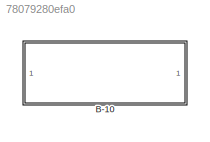
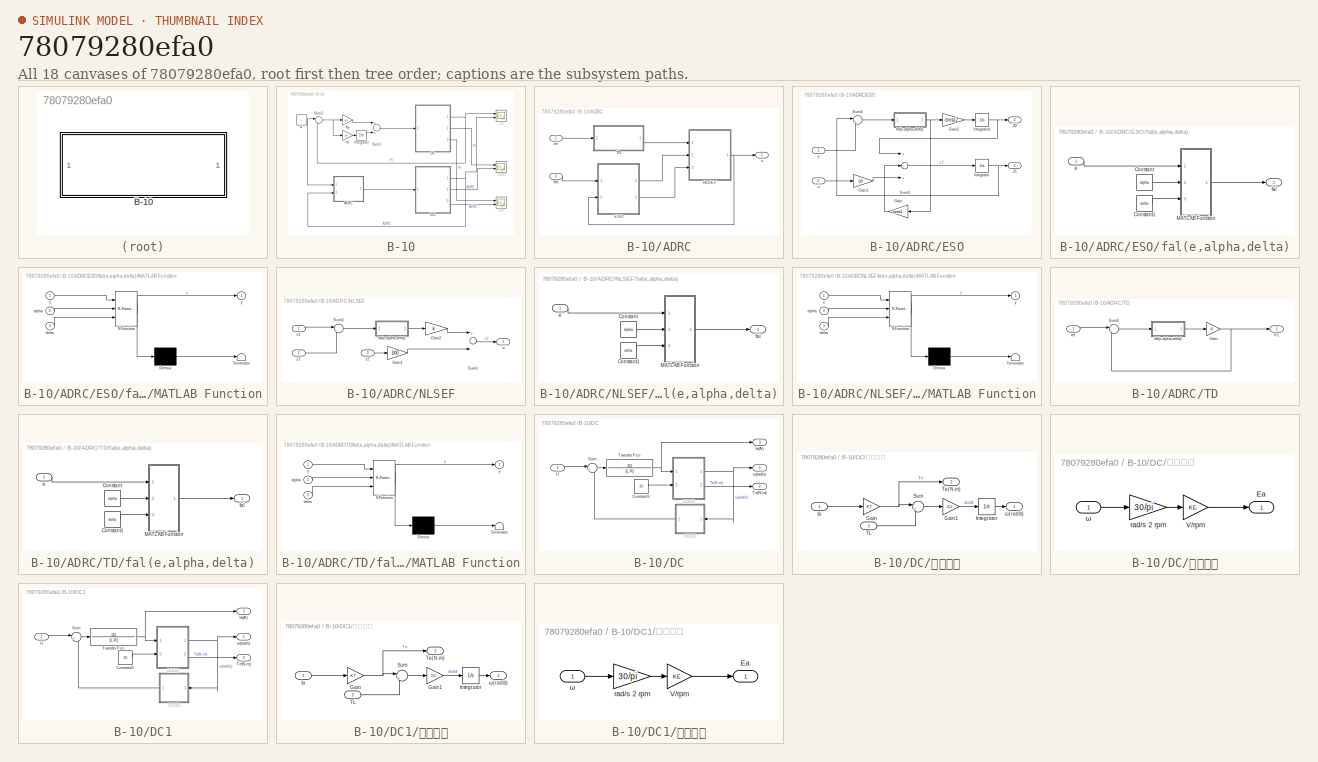
[diagram: thumbnail index - all 18 canvases of the model, root first then tree order]
MODEL slx_78079280efa0
KIND model
CONFIG AbsTol = auto
CONFIG EnableMultiTasking = off
CONFIG FixedStep = auto
CONFIG MaxStep = 1e-4
CONFIG MinStep = auto
CONFIG RelTol = 1e-6
CONFIG SampleTimeConstraint = Unconstrained
CONFIG Solver = VariableStepAuto
CONFIG SolverName = VariableStepAuto
CONFIG StartTime = 0.0
CONFIG StopFcn = %CELEC_plot;
CONFIG StopTime = 1
BLOCK [SubSystem] B-10
  Ports = []
  RequestExecContextInheritance = off
BLOCK [SubSystem] B-10/ADRC
  Ports = [2, 1]
  RequestExecContextInheritance = off
BLOCK [SubSystem] B-10/ADRC/ESO
  Ports = [2, 2]
  RequestExecContextInheritance = off
BLOCK [Gain] B-10/ADRC/ESO/Gain
  Gain = beta1
  OutDataTypeStr = Inherit: Inherit via internal rule
  ParamDataTypeStr = Inherit: Inherit via internal rule
  SaturateOnIntegerOverflow = off
BLOCK [Gain] B-10/ADRC/ESO/Gain1
  Gain = b0
  OutDataTypeStr = Inherit: Inherit via internal rule
  ParamDataTypeStr = Inherit: Inherit via internal rule
  SaturateOnIntegerOverflow = off
BLOCK [Gain] B-10/ADRC/ESO/Gain2
  Gain = -beta2
  OutDataTypeStr = Inherit: Inherit via internal rule
  ParamDataTypeStr = Inherit: Inherit via internal rule
  SaturateOnIntegerOverflow = off
BLOCK [Integrator] B-10/ADRC/ESO/Integrator
  Ports = [1, 1]
BLOCK [Integrator] B-10/ADRC/ESO/Integrator1
  Ports = [1, 1]
BLOCK [Sum] B-10/ADRC/ESO/Sum1
  InputSameDT = off
  Inputs = +-+
  OutDataTypeStr = Inherit: Inherit via internal rule
  Ports = [3, 1]
  SaturateOnIntegerOverflow = off
BLOCK [Sum] B-10/ADRC/ESO/Sum3
  IconShape = round
  InputSameDT = off
  Inputs = |+-
  OutDataTypeStr = Inherit: Inherit via internal rule
  Ports = [2, 1]
  SaturateOnIntegerOverflow = off
BLOCK [Outport] B-10/ADRC/ESO/Z1   
  IconDisplay = Port number
BLOCK [Outport] B-10/ADRC/ESO/Z2
  IconDisplay = Port number
  Port = 2
BLOCK [SubSystem] B-10/ADRC/ESO/fal(e,alpha,delta)
  Ports = [1, 1]
  RequestExecContextInheritance = off
BLOCK [Constant] B-10/ADRC/ESO/fal(e,alpha,delta)/Constant
  Value = alpha
BLOCK [Constant] B-10/ADRC/ESO/fal(e,alpha,delta)/Constant1
  Value = delta
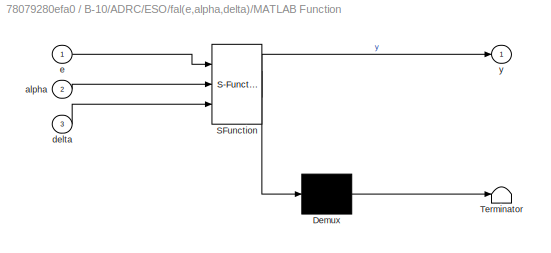
BLOCK [SubSystem] B-10/ADRC/ESO/fal(e,alpha,delta)/MATLAB Function
  ErrorFcn = Stateflow.Translate.translate
  PermitHierarchicalResolution = ExplicitOnly
  Ports = [3, 1]
  RequestExecContextInheritance = off
  SFBlockType = MATLAB Function
  TreatAsAtomicUnit = on
BLOCK [Demux] B-10/ADRC/ESO/fal(e,alpha,delta)/MATLAB Function/ Demux 
  Outputs = 1
  Ports = [1, 1]
BLOCK [S-Function] B-10/ADRC/ESO/fal(e,alpha,delta)/MATLAB Function/ SFunction 
  EnableBusSupport = on
  FunctionName = sf_sfun
  PortCounts = [3 2]
  Ports = [3, 2]
  SFcnIsStateOwnerBlock = off
  SFunctionDeploymentMode = off
  Tag = Stateflow S-Function B_14 1
BLOCK [Terminator] B-10/ADRC/ESO/fal(e,alpha,delta)/MATLAB Function/ Terminator 
BLOCK [Inport] B-10/ADRC/ESO/fal(e,alpha,delta)/MATLAB Function/alpha
  IconDisplay = Port number
  Port = 2
BLOCK [Inport] B-10/ADRC/ESO/fal(e,alpha,delta)/MATLAB Function/delta
  IconDisplay = Port number
  Port = 3
BLOCK [Inport] B-10/ADRC/ESO/fal(e,alpha,delta)/MATLAB Function/e
  IconDisplay = Port number
BLOCK [Outport] B-10/ADRC/ESO/fal(e,alpha,delta)/MATLAB Function/y
  IconDisplay = Port number
BLOCK [Inport] B-10/ADRC/ESO/fal(e,alpha,delta)/e
  IconDisplay = Port number
BLOCK [Outport] B-10/ADRC/ESO/fal(e,alpha,delta)/fal
  IconDisplay = Port number
BLOCK [Inport] B-10/ADRC/ESO/u
  IconDisplay = Port number
  Port = 2
BLOCK [Inport] B-10/ADRC/ESO/y
  IconDisplay = Port number
BLOCK [SubSystem] B-10/ADRC/NLSEF
  Ports = [3, 1]
  RequestExecContextInheritance = off
BLOCK [Gain] B-10/ADRC/NLSEF/Gain1
  Gain = 1/b0
  OutDataTypeStr = Inherit: Inherit via internal rule
  ParamDataTypeStr = Inherit: Inherit via internal rule
  SaturateOnIntegerOverflow = off
BLOCK [Gain] B-10/ADRC/NLSEF/Gain2
  Gain = k
  OutDataTypeStr = Inherit: Inherit via internal rule
  ParamDataTypeStr = Inherit: Inherit via internal rule
  SaturateOnIntegerOverflow = off
BLOCK [Sum] B-10/ADRC/NLSEF/Sum1
  InputSameDT = off
  Inputs = +-
  OutDataTypeStr = Inherit: Inherit via internal rule
  Ports = [2, 1]
  SaturateOnIntegerOverflow = off
BLOCK [Sum] B-10/ADRC/NLSEF/Sum3
  IconShape = round
  InputSameDT = off
  Inputs = |+-
  OutDataTypeStr = Inherit: Inherit via internal rule
  Ports = [2, 1]
  SaturateOnIntegerOverflow = off
BLOCK [SubSystem] B-10/ADRC/NLSEF/fal(e,alpha,delta)
  Ports = [1, 1]
  RequestExecContextInheritance = off
BLOCK [Constant] B-10/ADRC/NLSEF/fal(e,alpha,delta)/Constant
  Value = alpha
BLOCK [Constant] B-10/ADRC/NLSEF/fal(e,alpha,delta)/Constant1
  Value = delta
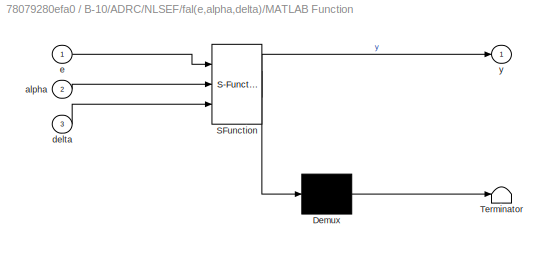
BLOCK [SubSystem] B-10/ADRC/NLSEF/fal(e,alpha,delta)/MATLAB Function
  ErrorFcn = Stateflow.Translate.translate
  PermitHierarchicalResolution = ExplicitOnly
  Ports = [3, 1]
  RequestExecContextInheritance = off
  SFBlockType = MATLAB Function
  TreatAsAtomicUnit = on
BLOCK [Demux] B-10/ADRC/NLSEF/fal(e,alpha,delta)/MATLAB Function/ Demux 
  Outputs = 1
  Ports = [1, 1]
BLOCK [S-Function] B-10/ADRC/NLSEF/fal(e,alpha,delta)/MATLAB Function/ SFunction 
  EnableBusSupport = on
  FunctionName = sf_sfun
  PortCounts = [3 2]
  Ports = [3, 2]
  SFcnIsStateOwnerBlock = off
  SFunctionDeploymentMode = off
  Tag = Stateflow S-Function B_14 3
BLOCK [Terminator] B-10/ADRC/NLSEF/fal(e,alpha,delta)/MATLAB Function/ Terminator 
BLOCK [Inport] B-10/ADRC/NLSEF/fal(e,alpha,delta)/MATLAB Function/alpha
  IconDisplay = Port number
  Port = 2
BLOCK [Inport] B-10/ADRC/NLSEF/fal(e,alpha,delta)/MATLAB Function/delta
  IconDisplay = Port number
  Port = 3
BLOCK [Inport] B-10/ADRC/NLSEF/fal(e,alpha,delta)/MATLAB Function/e
  IconDisplay = Port number
BLOCK [Outport] B-10/ADRC/NLSEF/fal(e,alpha,delta)/MATLAB Function/y
  IconDisplay = Port number
BLOCK [Inport] B-10/ADRC/NLSEF/fal(e,alpha,delta)/e
  IconDisplay = Port number
BLOCK [Outport] B-10/ADRC/NLSEF/fal(e,alpha,delta)/fal
  IconDisplay = Port number
BLOCK [Outport] B-10/ADRC/NLSEF/u
  IconDisplay = Port number
BLOCK [Inport] B-10/ADRC/NLSEF/v1
  IconDisplay = Port number
BLOCK [Inport] B-10/ADRC/NLSEF/z1
  IconDisplay = Port number
  Port = 2
BLOCK [Inport] B-10/ADRC/NLSEF/z2
  IconDisplay = Port number
  Port = 3
BLOCK [SubSystem] B-10/ADRC/TD
  Ports = [1, 1]
  RequestExecContextInheritance = off
BLOCK [Gain] B-10/ADRC/TD/Gain
  Gain = r0
  OutDataTypeStr = Inherit: Inherit via internal rule
  ParamDataTypeStr = Inherit: Inherit via internal rule
  SaturateOnIntegerOverflow = off
BLOCK [Sum] B-10/ADRC/TD/Sum3
  IconShape = round
  InputSameDT = off
  Inputs = |+-
  OutDataTypeStr = Inherit: Inherit via internal rule
  Ports = [2, 1]
  SaturateOnIntegerOverflow = off
BLOCK [Outport] B-10/ADRC/TD/V1
  IconDisplay = Port number
BLOCK [SubSystem] B-10/ADRC/TD/fal(e,alpha,delta)
  Ports = [1, 1]
  RequestExecContextInheritance = off
BLOCK [Constant] B-10/ADRC/TD/fal(e,alpha,delta)/Constant
  Value = alpha
BLOCK [Constant] B-10/ADRC/TD/fal(e,alpha,delta)/Constant1
  Value = delta
BLOCK [SubSystem] B-10/ADRC/TD/fal(e,alpha,delta)/MATLAB Function
  ErrorFcn = Stateflow.Translate.translate
  PermitHierarchicalResolution = ExplicitOnly
  Ports = [3, 1]
  RequestExecContextInheritance = off
  SFBlockType = MATLAB Function
  TreatAsAtomicUnit = on
BLOCK [Demux] B-10/ADRC/TD/fal(e,alpha,delta)/MATLAB Function/ Demux 
  Outputs = 1
  Ports = [1, 1]
BLOCK [S-Function] B-10/ADRC/TD/fal(e,alpha,delta)/MATLAB Function/ SFunction 
  EnableBusSupport = on
  FunctionName = sf_sfun
  PortCounts = [3 2]
  Ports = [3, 2]
  SFcnIsStateOwnerBlock = off
  SFunctionDeploymentMode = off
  Tag = Stateflow S-Function B_14 2
BLOCK [Terminator] B-10/ADRC/TD/fal(e,alpha,delta)/MATLAB Function/ Terminator 
BLOCK [Inport] B-10/ADRC/TD/fal(e,alpha,delta)/MATLAB Function/alpha
  IconDisplay = Port number
  Port = 2
BLOCK [Inport] B-10/ADRC/TD/fal(e,alpha,delta)/MATLAB Function/delta
  IconDisplay = Port number
  Port = 3
BLOCK [Inport] B-10/ADRC/TD/fal(e,alpha,delta)/MATLAB Function/e
  IconDisplay = Port number
BLOCK [Outport] B-10/ADRC/TD/fal(e,alpha,delta)/MATLAB Function/y
  IconDisplay = Port number
BLOCK [Inport] B-10/ADRC/TD/fal(e,alpha,delta)/e
  IconDisplay = Port number
BLOCK [Outport] B-10/ADRC/TD/fal(e,alpha,delta)/fal
  IconDisplay = Port number
BLOCK [Inport] B-10/ADRC/TD/ref
  IconDisplay = Port number
BLOCK [Inport] B-10/ADRC/fbk
  IconDisplay = Port number
  Port = 2
BLOCK [Inport] B-10/ADRC/ref
  IconDisplay = Port number
BLOCK [Outport] B-10/ADRC/u
  IconDisplay = Port number
BLOCK [SubSystem] B-10/DC
  Ports = [1, 3]
  RequestExecContextInheritance = off
BLOCK [Constant] B-10/DC/Constant3
  Value = 10
BLOCK [Outport] B-10/DC/Ia(A)
  IconDisplay = Port number
  Port = 3
BLOCK [Sum] B-10/DC/Sum
  IconShape = round
  InputSameDT = off
  Inputs = |+-
  OutDataTypeStr = Inherit: Inherit via internal rule
  Ports = [2, 1]
  SaturateOnIntegerOverflow = off
BLOCK [Outport] B-10/DC/Te(N.m)
  IconDisplay = Port number
  Port = 2
BLOCK [TransferFcn] B-10/DC/Transfer Fcn
  Denominator = [L R]
BLOCK [Inport] B-10/DC/U
  IconDisplay = Port number
BLOCK [Outport] B-10/DC/ω(rad//s)
  IconDisplay = Port number
BLOCK [SubSystem] B-10/DC/机械方程
  Ports = [2, 2]
  RequestExecContextInheritance = off
BLOCK [Gain] B-10/DC/机械方程/Gain
  Gain = KT
  OutDataTypeStr = Inherit: Inherit via internal rule
  ParamDataTypeStr = Inherit: Inherit via internal rule
  SaturateOnIntegerOverflow = off
BLOCK [Gain] B-10/DC/机械方程/Gain1
  Gain = 1/J
  OutDataTypeStr = Inherit: Inherit via internal rule
  ParamDataTypeStr = Inherit: Inherit via internal rule
  SaturateOnIntegerOverflow = off
BLOCK [Inport] B-10/DC/机械方程/Ia
  IconDisplay = Port number
BLOCK [Integrator] B-10/DC/机械方程/Integrator
  Ports = [1, 1]
BLOCK [Sum] B-10/DC/机械方程/Sum
  IconShape = round
  InputSameDT = off
  Inputs = |+-
  OutDataTypeStr = Inherit: Inherit via internal rule
  Ports = [2, 1]
  SaturateOnIntegerOverflow = off
BLOCK [Inport] B-10/DC/机械方程/TL
  IconDisplay = Port number
  Port = 2
BLOCK [Outport] B-10/DC/机械方程/Te(N.m)
  IconDisplay = Port number
  Port = 2
BLOCK [Outport] B-10/DC/机械方程/ω(rad//s)
  IconDisplay = Port number
BLOCK [SubSystem] B-10/DC/电气方程
  Ports = [1, 1]
  RequestExecContextInheritance = off
BLOCK [Outport] B-10/DC/电气方程/Ea
  IconDisplay = Port number
BLOCK [Gain] B-10/DC/电气方程/V//rpm
  Gain = KE
  OutDataTypeStr = Inherit: Inherit via internal rule
  ParamDataTypeStr = Inherit: Inherit via internal rule
  SaturateOnIntegerOverflow = off
BLOCK [Gain] B-10/DC/电气方程/rad//s 2 rpm
  Gain = 30/pi
  OutDataTypeStr = Inherit: Inherit via internal rule
  ParamDataTypeStr = Inherit: Inherit via internal rule
  SaturateOnIntegerOverflow = off
BLOCK [Inport] B-10/DC/电气方程/ω
  IconDisplay = Port number
BLOCK [SubSystem] B-10/DC1
  Ports = [1, 3]
  RequestExecContextInheritance = off
BLOCK [Constant] B-10/DC1/Constant3
  Value = 10
BLOCK [Outport] B-10/DC1/Ia(A)
  IconDisplay = Port number
  Port = 3
BLOCK [Sum] B-10/DC1/Sum
  IconShape = round
  InputSameDT = off
  Inputs = |+-
  OutDataTypeStr = Inherit: Inherit via internal rule
  Ports = [2, 1]
  SaturateOnIntegerOverflow = off
BLOCK [Outport] B-10/DC1/Te(N.m)
  IconDisplay = Port number
  Port = 2
BLOCK [TransferFcn] B-10/DC1/Transfer Fcn
  Denominator = [L R]
BLOCK [Inport] B-10/DC1/U
  IconDisplay = Port number
BLOCK [Outport] B-10/DC1/ω(rad//s)
  IconDisplay = Port number
BLOCK [SubSystem] B-10/DC1/机械方程
  Ports = [2, 2]
  RequestExecContextInheritance = off
BLOCK [Gain] B-10/DC1/机械方程/Gain
  Gain = KT
  OutDataTypeStr = Inherit: Inherit via internal rule
  ParamDataTypeStr = Inherit: Inherit via internal rule
  SaturateOnIntegerOverflow = off
BLOCK [Gain] B-10/DC1/机械方程/Gain1
  Gain = 1/J
  OutDataTypeStr = Inherit: Inherit via internal rule
  ParamDataTypeStr = Inherit: Inherit via internal rule
  SaturateOnIntegerOverflow = off
BLOCK [Inport] B-10/DC1/机械方程/Ia
  IconDisplay = Port number
BLOCK [Integrator] B-10/DC1/机械方程/Integrator
  Ports = [1, 1]
BLOCK [Sum] B-10/DC1/机械方程/Sum
  IconShape = round
  InputSameDT = off
  Inputs = |+-
  OutDataTypeStr = Inherit: Inherit via internal rule
  Ports = [2, 1]
  SaturateOnIntegerOverflow = off
BLOCK [Inport] B-10/DC1/机械方程/TL
  IconDisplay = Port number
  Port = 2
BLOCK [Outport] B-10/DC1/机械方程/Te(N.m)
  IconDisplay = Port number
  Port = 2
BLOCK [Outport] B-10/DC1/机械方程/ω(rad//s)
  IconDisplay = Port number
BLOCK [SubSystem] B-10/DC1/电气方程
  Ports = [1, 1]
  RequestExecContextInheritance = off
BLOCK [Outport] B-10/DC1/电气方程/Ea
  IconDisplay = Port number
BLOCK [Gain] B-10/DC1/电气方程/V//rpm
  Gain = KE
  OutDataTypeStr = Inherit: Inherit via internal rule
  ParamDataTypeStr = Inherit: Inherit via internal rule
  SaturateOnIntegerOverflow = off
BLOCK [Gain] B-10/DC1/电气方程/rad//s 2 rpm
  Gain = 30/pi
  OutDataTypeStr = Inherit: Inherit via internal rule
  ParamDataTypeStr = Inherit: Inherit via internal rule
  SaturateOnIntegerOverflow = off
BLOCK [Inport] B-10/DC1/电气方程/ω
  IconDisplay = Port number
BLOCK [Integrator] B-10/Integrator
  Ports = [1, 1]
BLOCK [Gain] B-10/Ki
  Gain = 300
  OutDataTypeStr = Inherit: Inherit via internal rule
  ParamDataTypeStr = Inherit: Inherit via internal rule
  SaturateOnIntegerOverflow = off
BLOCK [Gain] B-10/Kp
  Gain = 200
  OutDataTypeStr = Inherit: Inherit via internal rule
  ParamDataTypeStr = Inherit: Inherit via internal rule
  SaturateOnIntegerOverflow = off
BLOCK [Sum] B-10/Sum1
  InputSameDT = off
  OutDataTypeStr = Inherit: Inherit via internal rule
  Ports = [2, 1]
  SaturateOnIntegerOverflow = off
BLOCK [Sum] B-10/Sum2
  IconShape = round
  InputSameDT = off
  Inputs = |+-
  OutDataTypeStr = Inherit: Inherit via internal rule
  Ports = [2, 1]
  SaturateOnIntegerOverflow = off
BLOCK [Constant] B-10/w*
BLOCK [Scope] B-10/电流
  Floating = off
  NumInputPorts = 2
  Ports = [2]
  ScopeSpecificationString = Simulink.scopes.TimeScopeBlockCfg('CurrentConfiguration', extmgr.ConfigurationSet(extmgr.Configuration('Core','General UI',true),extmgr.Configuration('Core','Source UI',true),extmgr.Configuration('Sources','WiredSimulink',true,'DataLoggingVariableName','ScopeData1'),extmgr.Configuration('Visuals','Time Domain',true,'SerializedDisplays',{struct('MinYLimReal','-20.58398','MaxYLimReal','53.9504','YLa...<+1398ch>
BLOCK [Scope] B-10/电磁转矩
  Floating = off
  NumInputPorts = 2
  Ports = [2]
  ScopeSpecificationString = Simulink.scopes.TimeScopeBlockCfg('CurrentConfiguration', extmgr.ConfigurationSet(extmgr.Configuration('Core','General UI',true),extmgr.Configuration('Core','Source UI',true),extmgr.Configuration('Sources','WiredSimulink',true,'DataLoggingVariableName','ScopeData2'),extmgr.Configuration('Visuals','Time Domain',true,'SerializedDisplays',{struct('MinYLimReal','-354.04438','MaxYLimReal','927.94679','...<+1449ch>
BLOCK [Scope] B-10/转速
  Floating = off
  NumInputPorts = 2
  Ports = [2]
  ScopeSpecificationString = Simulink.scopes.TimeScopeBlockCfg('CurrentConfiguration', extmgr.ConfigurationSet(extmgr.Configuration('Core','General UI',true),extmgr.Configuration('Core','Source UI',true),extmgr.Configuration('Sources','WiredSimulink',true),extmgr.Configuration('Visuals','Time Domain',true,'SerializedDisplays',{struct('MinYLimReal','-0.14959','MaxYLimReal','1.34606','YLabelReal','','MinYLimMag','0.00000','MaxY...<+1450ch>
LINE B-10/ADRC/ESO/Gain1:1 -> B-10/ADRC/ESO/Sum1:3
LINE B-10/ADRC/ESO/Gain2:1 -> B-10/ADRC/ESO/Integrator1:1
LINE B-10/ADRC/ESO/Gain:1 -> B-10/ADRC/ESO/Sum1:2
NET B-10/ADRC/ESO/Integrator1:1 -> B-10/ADRC/ESO/Sum1:1, B-10/ADRC/ESO/Z2:1
NET B-10/ADRC/ESO/Integrator:1 -> B-10/ADRC/ESO/Sum3:1, B-10/ADRC/ESO/Z1   :1
LINE B-10/ADRC/ESO/Sum1:1 -> B-10/ADRC/ESO/Integrator:1
LINE B-10/ADRC/ESO/Sum3:1 -> B-10/ADRC/ESO/fal(e,alpha,delta):1
LINE B-10/ADRC/ESO/fal(e,alpha,delta)/Constant1:1 -> B-10/ADRC/ESO/fal(e,alpha,delta)/MATLAB Function:3
LINE B-10/ADRC/ESO/fal(e,alpha,delta)/Constant:1 -> B-10/ADRC/ESO/fal(e,alpha,delta)/MATLAB Function:2
LINE B-10/ADRC/ESO/fal(e,alpha,delta)/MATLAB Function:1 -> B-10/ADRC/ESO/fal(e,alpha,delta)/fal:1
LINE B-10/ADRC/ESO/fal(e,alpha,delta)/e:1 -> B-10/ADRC/ESO/fal(e,alpha,delta)/MATLAB Function:1
NET B-10/ADRC/ESO/fal(e,alpha,delta):1 -> B-10/ADRC/ESO/Gain2:1, B-10/ADRC/ESO/Gain:1
LINE B-10/ADRC/ESO/u:1 -> B-10/ADRC/ESO/Gain1:1
LINE B-10/ADRC/ESO/y:1 -> B-10/ADRC/ESO/Sum3:2
LINE B-10/ADRC/ESO:1 -> B-10/ADRC/NLSEF:2
LINE B-10/ADRC/ESO:2 -> B-10/ADRC/NLSEF:3
LINE B-10/ADRC/NLSEF/Gain1:1 -> B-10/ADRC/NLSEF/Sum1:2
LINE B-10/ADRC/NLSEF/Gain2:1 -> B-10/ADRC/NLSEF/Sum1:1
LINE B-10/ADRC/NLSEF/Sum1:1 -> B-10/ADRC/NLSEF/u:1
LINE B-10/ADRC/NLSEF/Sum3:1 -> B-10/ADRC/NLSEF/fal(e,alpha,delta):1
LINE B-10/ADRC/NLSEF/fal(e,alpha,delta)/Constant1:1 -> B-10/ADRC/NLSEF/fal(e,alpha,delta)/MATLAB Function:3
LINE B-10/ADRC/NLSEF/fal(e,alpha,delta)/Constant:1 -> B-10/ADRC/NLSEF/fal(e,alpha,delta)/MATLAB Function:2
LINE B-10/ADRC/NLSEF/fal(e,alpha,delta)/MATLAB Function:1 -> B-10/ADRC/NLSEF/fal(e,alpha,delta)/fal:1
LINE B-10/ADRC/NLSEF/fal(e,alpha,delta)/e:1 -> B-10/ADRC/NLSEF/fal(e,alpha,delta)/MATLAB Function:1
LINE B-10/ADRC/NLSEF/fal(e,alpha,delta):1 -> B-10/ADRC/NLSEF/Gain2:1
LINE B-10/ADRC/NLSEF/v1:1 -> B-10/ADRC/NLSEF/Sum3:1
LINE B-10/ADRC/NLSEF/z1:1 -> B-10/ADRC/NLSEF/Sum3:2
LINE B-10/ADRC/NLSEF/z2:1 -> B-10/ADRC/NLSEF/Gain1:1
NET B-10/ADRC/NLSEF:1 -> B-10/ADRC/ESO:2, B-10/ADRC/u:1
NET B-10/ADRC/TD/Gain:1 -> B-10/ADRC/TD/Sum3:2, B-10/ADRC/TD/V1:1
LINE B-10/ADRC/TD/Sum3:1 -> B-10/ADRC/TD/fal(e,alpha,delta):1
LINE B-10/ADRC/TD/fal(e,alpha,delta)/Constant1:1 -> B-10/ADRC/TD/fal(e,alpha,delta)/MATLAB Function:3
LINE B-10/ADRC/TD/fal(e,alpha,delta)/Constant:1 -> B-10/ADRC/TD/fal(e,alpha,delta)/MATLAB Function:2
LINE B-10/ADRC/TD/fal(e,alpha,delta)/MATLAB Function:1 -> B-10/ADRC/TD/fal(e,alpha,delta)/fal:1
LINE B-10/ADRC/TD/fal(e,alpha,delta)/e:1 -> B-10/ADRC/TD/fal(e,alpha,delta)/MATLAB Function:1
LINE B-10/ADRC/TD/fal(e,alpha,delta):1 -> B-10/ADRC/TD/Gain:1
LINE B-10/ADRC/TD/ref:1 -> B-10/ADRC/TD/Sum3:1
LINE B-10/ADRC/TD:1 -> B-10/ADRC/NLSEF:1
LINE B-10/ADRC/fbk:1 -> B-10/ADRC/ESO:1
LINE B-10/ADRC/ref:1 -> B-10/ADRC/TD:1
LINE B-10/ADRC:1 -> B-10/DC1:1
LINE B-10/DC/Constant3:1 -> B-10/DC/机械方程:2
LINE B-10/DC/Sum:1 -> B-10/DC/Transfer Fcn:1
NET B-10/DC/Transfer Fcn:1 -> B-10/DC/Ia(A):1, B-10/DC/机械方程:1
LINE B-10/DC/U:1 -> B-10/DC/Sum:1
LINE B-10/DC/机械方程/Gain1:1 -> B-10/DC/机械方程/Integrator:1
NET B-10/DC/机械方程/Gain:1 -> B-10/DC/机械方程/Sum:1, B-10/DC/机械方程/Te(N.m):1
LINE B-10/DC/机械方程/Ia:1 -> B-10/DC/机械方程/Gain:1
LINE B-10/DC/机械方程/Integrator:1 -> B-10/DC/机械方程/ω(rad//s):1
LINE B-10/DC/机械方程/Sum:1 -> B-10/DC/机械方程/Gain1:1
LINE B-10/DC/机械方程/TL:1 -> B-10/DC/机械方程/Sum:2
NET B-10/DC/机械方程:1 -> B-10/DC/ω(rad//s):1, B-10/DC/电气方程:1
LINE B-10/DC/机械方程:2 -> B-10/DC/Te(N.m):1
LINE B-10/DC/电气方程/V//rpm:1 -> B-10/DC/电气方程/Ea:1
LINE B-10/DC/电气方程/rad//s 2 rpm:1 -> B-10/DC/电气方程/V//rpm:1
LINE B-10/DC/电气方程/ω:1 -> B-10/DC/电气方程/rad//s 2 rpm:1
LINE B-10/DC/电气方程:1 -> B-10/DC/Sum:2
LINE B-10/DC1/Constant3:1 -> B-10/DC1/机械方程:2
LINE B-10/DC1/Sum:1 -> B-10/DC1/Transfer Fcn:1
NET B-10/DC1/Transfer Fcn:1 -> B-10/DC1/Ia(A):1, B-10/DC1/机械方程:1
LINE B-10/DC1/U:1 -> B-10/DC1/Sum:1
LINE B-10/DC1/机械方程/Gain1:1 -> B-10/DC1/机械方程/Integrator:1
NET B-10/DC1/机械方程/Gain:1 -> B-10/DC1/机械方程/Sum:1, B-10/DC1/机械方程/Te(N.m):1
LINE B-10/DC1/机械方程/Ia:1 -> B-10/DC1/机械方程/Gain:1
LINE B-10/DC1/机械方程/Integrator:1 -> B-10/DC1/机械方程/ω(rad//s):1
LINE B-10/DC1/机械方程/Sum:1 -> B-10/DC1/机械方程/Gain1:1
LINE B-10/DC1/机械方程/TL:1 -> B-10/DC1/机械方程/Sum:2
NET B-10/DC1/机械方程:1 -> B-10/DC1/ω(rad//s):1, B-10/DC1/电气方程:1
LINE B-10/DC1/机械方程:2 -> B-10/DC1/Te(N.m):1
LINE B-10/DC1/电气方程/V//rpm:1 -> B-10/DC1/电气方程/Ea:1
LINE B-10/DC1/电气方程/rad//s 2 rpm:1 -> B-10/DC1/电气方程/V//rpm:1
LINE B-10/DC1/电气方程/ω:1 -> B-10/DC1/电气方程/rad//s 2 rpm:1
LINE B-10/DC1/电气方程:1 -> B-10/DC1/Sum:2
NET B-10/DC1:1 -> B-10/ADRC:2, B-10/转速:2
LINE B-10/DC1:2 -> B-10/电磁转矩:2
LINE B-10/DC1:3 -> B-10/电流:2
NET B-10/DC:1 -> B-10/Sum2:2, B-10/转速:1
LINE B-10/DC:2 -> B-10/电磁转矩:1
LINE B-10/DC:3 -> B-10/电流:1
LINE B-10/Integrator:1 -> B-10/Sum1:2
LINE B-10/Ki:1 -> B-10/Integrator:1
LINE B-10/Kp:1 -> B-10/Sum1:1
LINE B-10/Sum1:1 -> B-10/DC:1
NET B-10/Sum2:1 -> B-10/Ki:1, B-10/Kp:1
NET B-10/w*:1 -> B-10/ADRC:1, B-10/Sum2:1
note: NET lines group one-source signal fan-out (src -> all destinations, sorted); 1:1 wires keep LINE
CHART B-10/ADRC/ESO/fal(e,alpha,delta)/MATLAB Function states=1 transitions=1
  STATE_LABEL 'eML_blk_kernel()'
  STATE_LABEL 'SCRIPT:\nfunction y = fcn(e,alpha,delta)\n\nif abs(e) > delta\n    y = ( abs(e) )^ alpha*sign(e);\nelse\n    y = e/(delta^(1-alpha));\nend\n\nend\n'
CHART B-10/ADRC/TD/fal(e,alpha,delta)/MATLAB Function states=1 transitions=1
  STATE_LABEL 'eML_blk_kernel()'
  STATE_LABEL 'SCRIPT:\nfunction y = fcn(e,alpha,delta)\n\nif abs(e) > delta\n    y = ( abs(e) )^ alpha*sign(e);\nelse\n    y = e/(delta^(1-alpha));\nend\n\nend\n'
CHART B-10/ADRC/NLSEF/fal(e,alpha,delta)/MATLAB Function states=1 transitions=1
  STATE_LABEL 'eML_blk_kernel()'
  STATE_LABEL 'SCRIPT:\nfunction y = fcn(e,alpha,delta)\n\nif abs(e) > delta\n    y = ( abs(e) )^ alpha*sign(e);\nelse\n    y = e/(delta^(1-alpha));\nend\n\nend\n'
